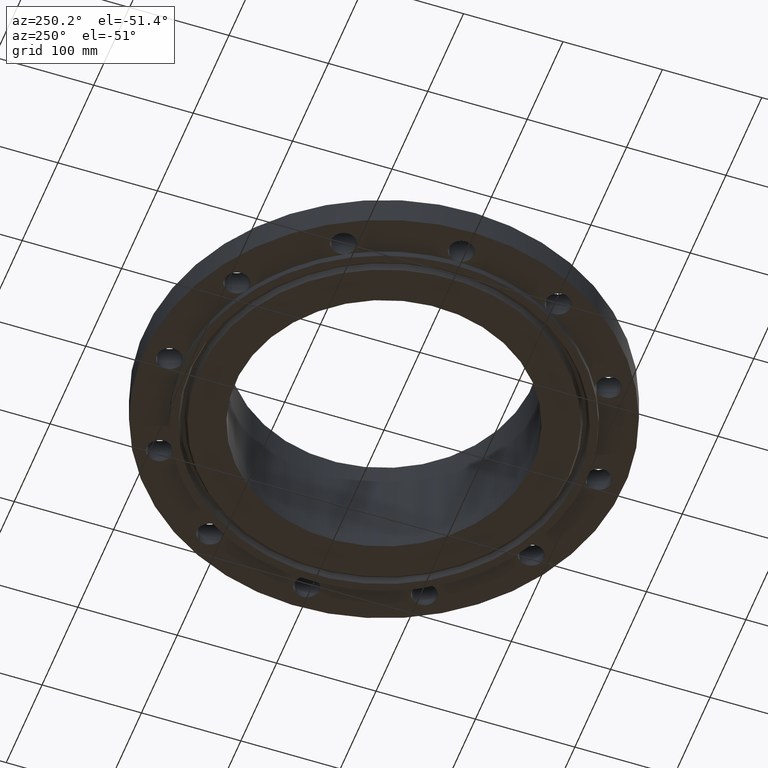
[diagram: clean part render]
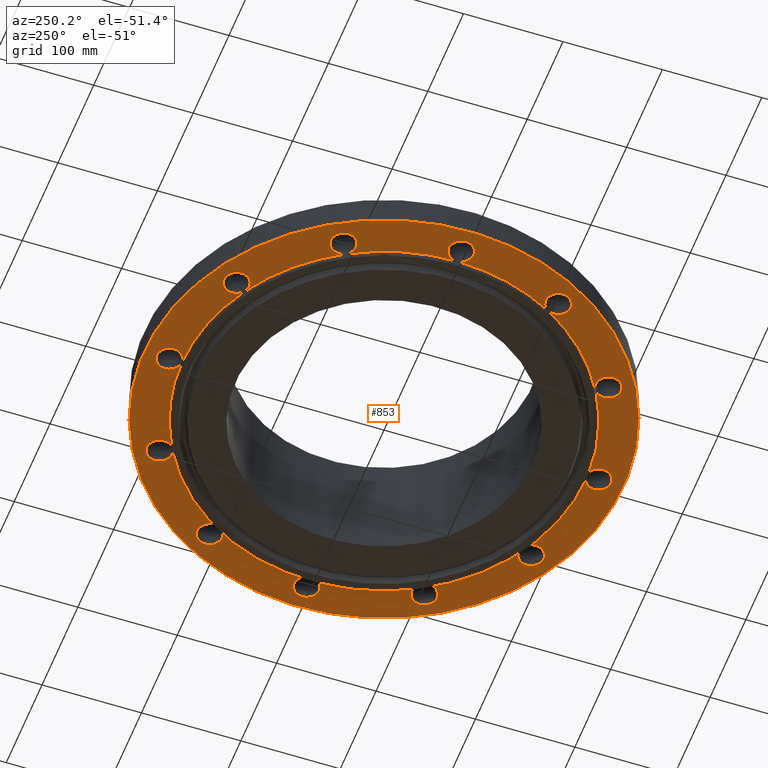
[diagram: same view with one face highlighted and labeled with its STEP entity id]
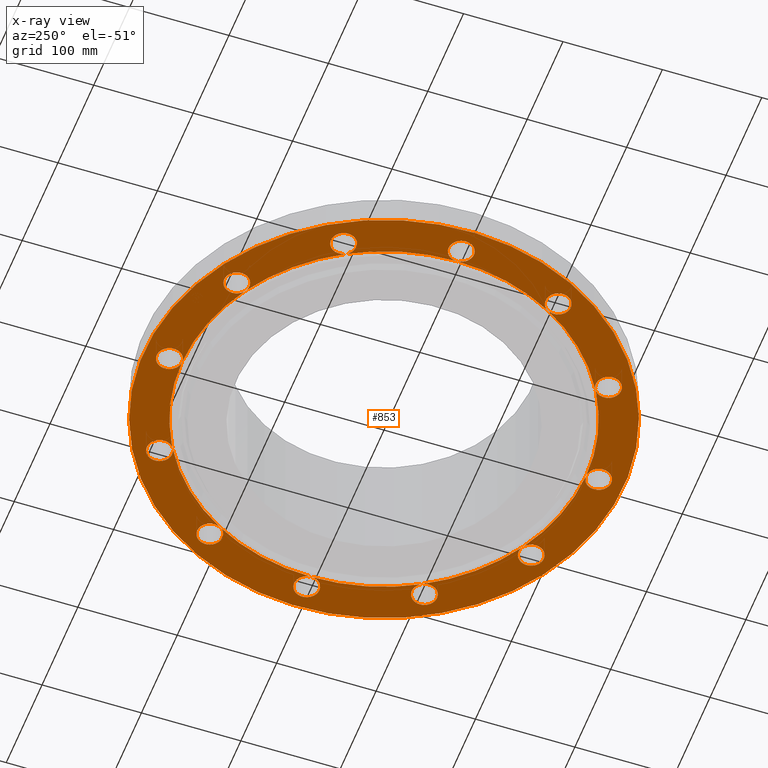
[diagram: x-ray of the same camera — body ghosted, the highlighted face saturated]
A machine part, auxiliary view. The second image highlights one B-rep face of the part: STEP entity #853.
The next image is the same camera in x-ray: the body ghosted, the highlighted face saturated — about 0% of this face is hidden behind the body in this view.
In plain terms, the highlighted planar face has unit normal (0, 0, -1).
Its self-contained STEP definition (entity closure, byte-faithful):
#51=AXIS2_PLACEMENT_3D('Circle Axis2P3D',#49,#50,$) ;
#77=AXIS2_PLACEMENT_3D('Circle Axis2P3D',#75,#76,$) ;
#84=AXIS2_PLACEMENT_3D('Circle Axis2P3D',#82,#83,$) ;
#107=AXIS2_PLACEMENT_3D('Circle Axis2P3D',#105,#106,$) ;
#142=AXIS2_PLACEMENT_3D('Circle Axis2P3D',#140,#141,$) ;
#455=AXIS2_PLACEMENT_3D('Circle Axis2P3D',#453,#454,$) ;
#462=AXIS2_PLACEMENT_3D('Circle Axis2P3D',#460,#461,$) ;
#469=AXIS2_PLACEMENT_3D('Circle Axis2P3D',#467,#468,$) ;
#476=AXIS2_PLACEMENT_3D('Circle Axis2P3D',#474,#475,$) ;
#483=AXIS2_PLACEMENT_3D('Circle Axis2P3D',#481,#482,$) ;
#490=AXIS2_PLACEMENT_3D('Circle Axis2P3D',#488,#489,$) ;
#495=AXIS2_PLACEMENT_3D('Circle Axis2P3D',#493,#494,$) ;
#525=AXIS2_PLACEMENT_3D('Circle Axis2P3D',#523,#524,$) ;
#532=AXIS2_PLACEMENT_3D('Circle Axis2P3D',#530,#531,$) ;
#539=AXIS2_PLACEMENT_3D('Circle Axis2P3D',#537,#538,$) ;
#546=AXIS2_PLACEMENT_3D('Circle Axis2P3D',#544,#545,$) ;
#553=AXIS2_PLACEMENT_3D('Circle Axis2P3D',#551,#552,$) ;
#560=AXIS2_PLACEMENT_3D('Circle Axis2P3D',#558,#559,$) ;
#567=AXIS2_PLACEMENT_3D('Circle Axis2P3D',#565,#566,$) ;
#586=AXIS2_PLACEMENT_3D('Plane Axis2P3D',#583,#584,#585) ;
#594=AXIS2_PLACEMENT_3D('Circle Axis2P3D',#592,#593,$) ;
#601=AXIS2_PLACEMENT_3D('Circle Axis2P3D',#599,#600,$) ;
#608=AXIS2_PLACEMENT_3D('Circle Axis2P3D',#606,#607,$) ;
#613=AXIS2_PLACEMENT_3D('Circle Axis2P3D',#611,#612,$) ;
#620=AXIS2_PLACEMENT_3D('Circle Axis2P3D',#618,#619,$) ;
#627=AXIS2_PLACEMENT_3D('Circle Axis2P3D',#625,#626,$) ;
#632=AXIS2_PLACEMENT_3D('Circle Axis2P3D',#630,#631,$) ;
#639=AXIS2_PLACEMENT_3D('Circle Axis2P3D',#637,#638,$) ;
#646=AXIS2_PLACEMENT_3D('Circle Axis2P3D',#644,#645,$) ;
#651=AXIS2_PLACEMENT_3D('Circle Axis2P3D',#649,#650,$) ;
#658=AXIS2_PLACEMENT_3D('Circle Axis2P3D',#656,#657,$) ;
#665=AXIS2_PLACEMENT_3D('Circle Axis2P3D',#663,#664,$) ;
#670=AXIS2_PLACEMENT_3D('Circle Axis2P3D',#668,#669,$) ;
#677=AXIS2_PLACEMENT_3D('Circle Axis2P3D',#675,#676,$) ;
#684=AXIS2_PLACEMENT_3D('Circle Axis2P3D',#682,#683,$) ;
#689=AXIS2_PLACEMENT_3D('Circle Axis2P3D',#687,#688,$) ;
#696=AXIS2_PLACEMENT_3D('Circle Axis2P3D',#694,#695,$) ;
#703=AXIS2_PLACEMENT_3D('Circle Axis2P3D',#701,#702,$) ;
#708=AXIS2_PLACEMENT_3D('Circle Axis2P3D',#706,#707,$) ;
#715=AXIS2_PLACEMENT_3D('Circle Axis2P3D',#713,#714,$) ;
#722=AXIS2_PLACEMENT_3D('Circle Axis2P3D',#720,#721,$) ;
#727=AXIS2_PLACEMENT_3D('Circle Axis2P3D',#725,#726,$) ;
#734=AXIS2_PLACEMENT_3D('Circle Axis2P3D',#732,#733,$) ;
#741=AXIS2_PLACEMENT_3D('Circle Axis2P3D',#739,#740,$) ;
#746=AXIS2_PLACEMENT_3D('Circle Axis2P3D',#744,#745,$) ;
#753=AXIS2_PLACEMENT_3D('Circle Axis2P3D',#751,#752,$) ;
#760=AXIS2_PLACEMENT_3D('Circle Axis2P3D',#758,#759,$) ;
#765=AXIS2_PLACEMENT_3D('Circle Axis2P3D',#763,#764,$) ;
#772=AXIS2_PLACEMENT_3D('Circle Axis2P3D',#770,#771,$) ;
#779=AXIS2_PLACEMENT_3D('Circle Axis2P3D',#777,#778,$) ;
#784=AXIS2_PLACEMENT_3D('Circle Axis2P3D',#782,#783,$) ;
#791=AXIS2_PLACEMENT_3D('Circle Axis2P3D',#789,#790,$) ;
#798=AXIS2_PLACEMENT_3D('Circle Axis2P3D',#796,#797,$) ;
#44=CARTESIAN_POINT('Vertex',(-0.438791280947,8.73971276934,0.)) ;
#49=CARTESIAN_POINT('Axis2P3D Location',(0.,8.50000000003,0.)) ;
#53=CARTESIAN_POINT('Vertex',(0.438791280947,8.26028723073,0.)) ;
#75=CARTESIAN_POINT('Axis2P3D Location',(0.,8.50000000003,0.)) ;
#79=CARTESIAN_POINT('Vertex',(-3.42901103763E-015,8.00000000003,1.1189649382E-015)) ;
#82=CARTESIAN_POINT('Axis2P3D Location',(0.,8.50000000003,0.)) ;
#105=CARTESIAN_POINT('Axis2P3D Location',(0.,0.,1.39870617276E-015)) ;
#109=CARTESIAN_POINT('Vertex',(-4.55454261676,-8.33703433799,1.39870617276E-015)) ;
#111=CARTESIAN_POINT('Vertex',(4.55454261676,8.33703433799,1.39870617276E-015)) ;
#140=CARTESIAN_POINT('Axis2P3D Location',(0.,0.,1.39870617276E-015)) ;
#450=CARTESIAN_POINT('Vertex',(-3.83540430885,-7.02066049515,8.39223703654E-016)) ;
#453=CARTESIAN_POINT('Axis2P3D Location',(0.,0.,1.1189649382E-015)) ;
#457=CARTESIAN_POINT('Vertex',(-4.00000000002,-6.9282032303,0.)) ;
#460=CARTESIAN_POINT('Axis2P3D Location',(0.,0.,1.1189649382E-015)) ;
#464=CARTESIAN_POINT('Vertex',(-6.9282032303,-4.00000000002,0.)) ;
#467=CARTESIAN_POINT('Axis2P3D Location',(0.,0.,1.1189649382E-015)) ;
#471=CARTESIAN_POINT('Vertex',(-8.00000000003,1.1189649382E-015,0.)) ;
#474=CARTESIAN_POINT('Axis2P3D Location',(0.,0.,1.1189649382E-015)) ;
#478=CARTESIAN_POINT('Vertex',(-6.9282032303,4.00000000002,0.)) ;
#481=CARTESIAN_POINT('Axis2P3D Location',(0.,0.,1.1189649382E-015)) ;
#485=CARTESIAN_POINT('Vertex',(-4.00000000002,6.9282032303,0.)) ;
#488=CARTESIAN_POINT('Axis2P3D Location',(0.,0.,1.1189649382E-015)) ;
#493=CARTESIAN_POINT('Axis2P3D Location',(0.,0.,1.1189649382E-015)) ;
#497=CARTESIAN_POINT('Vertex',(3.83540430885,7.02066049515,8.39223703654E-016)) ;
#523=CARTESIAN_POINT('Axis2P3D Location',(0.,0.,1.1189649382E-015)) ;
#527=CARTESIAN_POINT('Vertex',(4.00000000002,6.9282032303,0.)) ;
#530=CARTESIAN_POINT('Axis2P3D Location',(0.,0.,1.1189649382E-015)) ;
#534=CARTESIAN_POINT('Vertex',(6.9282032303,4.00000000002,0.)) ;
#537=CARTESIAN_POINT('Axis2P3D Location',(0.,0.,1.1189649382E-015)) ;
#541=CARTESIAN_POINT('Vertex',(8.00000000003,0.,0.)) ;
#544=CARTESIAN_POINT('Axis2P3D Location',(0.,0.,1.1189649382E-015)) ;
#548=CARTESIAN_POINT('Vertex',(6.9282032303,-4.00000000002,0.)) ;
#551=CARTESIAN_POINT('Axis2P3D Location',(0.,0.,1.1189649382E-015)) ;
#555=CARTESIAN_POINT('Vertex',(4.00000000002,-6.9282032303,0.)) ;
#558=CARTESIAN_POINT('Axis2P3D Location',(0.,0.,1.1189649382E-015)) ;
#562=CARTESIAN_POINT('Vertex',(1.4467282801E-015,-8.00000000003,0.)) ;
#565=CARTESIAN_POINT('Axis2P3D Location',(0.,0.,1.1189649382E-015)) ;
#583=CARTESIAN_POINT('Axis2P3D Location',(0.,8.00000000003,0.)) ;
#592=CARTESIAN_POINT('Axis2P3D Location',(7.3612159322,4.25000000002,0.)) ;
#596=CARTESIAN_POINT('Vertex',(7.37301422484,3.75013921911,0.)) ;
#599=CARTESIAN_POINT('Axis2P3D Location',(7.3612159322,4.25000000002,0.)) ;
#603=CARTESIAN_POINT('Vertex',(7.34941763955,4.74986078093,0.)) ;
#606=CARTESIAN_POINT('Axis2P3D Location',(7.3612159322,4.25000000002,0.)) ;
#611=CARTESIAN_POINT('Axis2P3D Location',(4.25000000002,7.3612159322,0.)) ;
#615=CARTESIAN_POINT('Vertex',(4.51014801162,6.9342229439,0.)) ;
#618=CARTESIAN_POINT('Axis2P3D Location',(4.25000000002,7.3612159322,0.)) ;
#622=CARTESIAN_POINT('Vertex',(3.98985198841,7.7882089205,0.)) ;
#625=CARTESIAN_POINT('Axis2P3D Location',(4.25000000002,7.3612159322,0.)) ;
#630=CARTESIAN_POINT('Axis2P3D Location',(-4.25000000002,7.3612159322,0.)) ;
#634=CARTESIAN_POINT('Vertex',(-3.75013921911,7.37301422484,0.)) ;
#637=CARTESIAN_POINT('Axis2P3D Location',(-4.25000000002,7.3612159322,0.)) ;
#641=CARTESIAN_POINT('Vertex',(-4.74986078093,7.34941763955,0.)) ;
#644=CARTESIAN_POINT('Axis2P3D Location',(-4.25000000002,7.3612159322,0.)) ;
#649=CARTESIAN_POINT('Axis2P3D Location',(-7.3612159322,4.25000000002,0.)) ;
#653=CARTESIAN_POINT('Vertex',(-6.9342229439,4.51014801162,0.)) ;
#656=CARTESIAN_POINT('Axis2P3D Location',(-7.3612159322,4.25000000002,0.)) ;
#660=CARTESIAN_POINT('Vertex',(-7.7882089205,3.98985198841,0.)) ;
#663=CARTESIAN_POINT('Axis2P3D Location',(-7.3612159322,4.25000000002,0.)) ;
#668=CARTESIAN_POINT('Axis2P3D Location',(-8.50000000003,0.,0.)) ;
#672=CARTESIAN_POINT('Vertex',(-8.26028723073,0.438791280947,0.)) ;
#675=CARTESIAN_POINT('Axis2P3D Location',(-8.50000000003,-1.1189649382E-015,0.)) ;
#679=CARTESIAN_POINT('Vertex',(-8.73971276934,-0.438791280947,0.)) ;
#682=CARTESIAN_POINT('Axis2P3D Location',(-8.50000000003,0.,0.)) ;
#687=CARTESIAN_POINT('Axis2P3D Location',(-7.3612159322,-4.25000000002,0.)) ;
#691=CARTESIAN_POINT('Vertex',(-7.37301422484,-3.75013921911,0.)) ;
#694=CARTESIAN_POINT('Axis2P3D Location',(-7.3612159322,-4.25000000002,0.)) ;
#698=CARTESIAN_POINT('Vertex',(-7.34941763955,-4.74986078093,0.)) ;
#701=CARTESIAN_POINT('Axis2P3D Location',(-7.3612159322,-4.25000000002,0.)) ;
#706=CARTESIAN_POINT('Axis2P3D Location',(-4.25000000002,-7.3612159322,0.)) ;
#710=CARTESIAN_POINT('Vertex',(-4.51014801162,-6.9342229439,0.)) ;
#713=CARTESIAN_POINT('Axis2P3D Location',(-4.25000000002,-7.3612159322,0.)) ;
#717=CARTESIAN_POINT('Vertex',(-3.98985198841,-7.7882089205,0.)) ;
#720=CARTESIAN_POINT('Axis2P3D Location',(-4.25000000002,-7.3612159322,0.)) ;
#725=CARTESIAN_POINT('Axis2P3D Location',(1.53857679003E-015,-8.50000000003,0.)) ;
#729=CARTESIAN_POINT('Vertex',(-0.438791280947,-8.26028723073,0.)) ;
#732=CARTESIAN_POINT('Axis2P3D Location',(6.81869259219E-016,-8.50000000003,0.)) ;
#736=CARTESIAN_POINT('Vertex',(0.438791280947,-8.73971276934,0.)) ;
#739=CARTESIAN_POINT('Axis2P3D Location',(1.53857679003E-015,-8.50000000003,0.)) ;
#744=CARTESIAN_POINT('Axis2P3D Location',(4.25000000002,-7.3612159322,0.)) ;
#748=CARTESIAN_POINT('Vertex',(3.75013921911,-7.37301422484,0.)) ;
#751=CARTESIAN_POINT('Axis2P3D Location',(4.25000000002,-7.3612159322,0.)) ;
#755=CARTESIAN_POINT('Vertex',(4.74986078093,-7.34941763955,0.)) ;
#758=CARTESIAN_POINT('Axis2P3D Location',(4.25000000002,-7.3612159322,0.)) ;
#763=CARTESIAN_POINT('Axis2P3D Location',(7.3612159322,-4.25000000002,0.)) ;
#767=CARTESIAN_POINT('Vertex',(6.9342229439,-4.51014801162,-1.1189649382E-015)) ;
#770=CARTESIAN_POINT('Axis2P3D Location',(7.3612159322,-4.25000000002,0.)) ;
#774=CARTESIAN_POINT('Vertex',(7.7882089205,-3.98985198841,0.)) ;
#777=CARTESIAN_POINT('Axis2P3D Location',(7.3612159322,-4.25000000002,0.)) ;
#782=CARTESIAN_POINT('Axis2P3D Location',(8.50000000003,0.,0.)) ;
#786=CARTESIAN_POINT('Vertex',(8.26028723073,-0.438791280947,0.)) ;
#789=CARTESIAN_POINT('Axis2P3D Location',(8.50000000003,0.,0.)) ;
#793=CARTESIAN_POINT('Vertex',(8.73971276934,0.438791280947,0.)) ;
#796=CARTESIAN_POINT('Axis2P3D Location',(8.50000000003,0.,0.)) ;
#50=DIRECTION('Axis2P3D Direction',(0.,-0.,-0.0393700787402)) ;
#76=DIRECTION('Axis2P3D Direction',(0.,-0.,-0.0393700787402)) ;
#83=DIRECTION('Axis2P3D Direction',(0.,-0.,-0.0393700787402)) ;
#106=DIRECTION('Axis2P3D Direction',(0.,0.,-0.0393700787402)) ;
#141=DIRECTION('Axis2P3D Direction',(0.,0.,-0.0393700787402)) ;
#454=DIRECTION('Axis2P3D Direction',(0.,0.,-0.0393700787402)) ;
#461=DIRECTION('Axis2P3D Direction',(0.,0.,-0.0393700787402)) ;
#468=DIRECTION('Axis2P3D Direction',(0.,0.,-0.0393700787402)) ;
#475=DIRECTION('Axis2P3D Direction',(0.,0.,-0.0393700787402)) ;
#482=DIRECTION('Axis2P3D Direction',(0.,0.,-0.0393700787402)) ;
#489=DIRECTION('Axis2P3D Direction',(0.,0.,-0.0393700787402)) ;
#494=DIRECTION('Axis2P3D Direction',(0.,0.,-0.0393700787402)) ;
#524=DIRECTION('Axis2P3D Direction',(0.,0.,-0.0393700787402)) ;
#531=DIRECTION('Axis2P3D Direction',(0.,0.,-0.0393700787402)) ;
#538=DIRECTION('Axis2P3D Direction',(0.,0.,-0.0393700787402)) ;
#545=DIRECTION('Axis2P3D Direction',(0.,0.,-0.0393700787402)) ;
#552=DIRECTION('Axis2P3D Direction',(0.,0.,-0.0393700787402)) ;
#559=DIRECTION('Axis2P3D Direction',(0.,0.,-0.0393700787402)) ;
#566=DIRECTION('Axis2P3D Direction',(0.,0.,-0.0393700787402)) ;
#584=DIRECTION('Axis2P3D Direction',(0.,0.,-0.0393700787402)) ;
#585=DIRECTION('Axis2P3D XDirection',(0.0393700787402,0.,0.)) ;
#593=DIRECTION('Axis2P3D Direction',(0.,0.,-0.0393700787402)) ;
#600=DIRECTION('Axis2P3D Direction',(0.,0.,-0.0393700787402)) ;
#607=DIRECTION('Axis2P3D Direction',(0.,0.,-0.0393700787402)) ;
#612=DIRECTION('Axis2P3D Direction',(0.,0.,-0.0393700787402)) ;
#619=DIRECTION('Axis2P3D Direction',(0.,0.,-0.0393700787402)) ;
#626=DIRECTION('Axis2P3D Direction',(0.,0.,-0.0393700787402)) ;
#631=DIRECTION('Axis2P3D Direction',(0.,0.,-0.0393700787402)) ;
#638=DIRECTION('Axis2P3D Direction',(0.,0.,-0.0393700787402)) ;
#645=DIRECTION('Axis2P3D Direction',(0.,0.,-0.0393700787402)) ;
#650=DIRECTION('Axis2P3D Direction',(0.,0.,-0.0393700787402)) ;
#657=DIRECTION('Axis2P3D Direction',(0.,0.,-0.0393700787402)) ;
#664=DIRECTION('Axis2P3D Direction',(0.,0.,-0.0393700787402)) ;
#669=DIRECTION('Axis2P3D Direction',(0.,0.,-0.0393700787402)) ;
#676=DIRECTION('Axis2P3D Direction',(0.,0.,-0.0393700787402)) ;
#683=DIRECTION('Axis2P3D Direction',(0.,0.,-0.0393700787402)) ;
#688=DIRECTION('Axis2P3D Direction',(0.,0.,-0.0393700787402)) ;
#695=DIRECTION('Axis2P3D Direction',(0.,0.,-0.0393700787402)) ;
#702=DIRECTION('Axis2P3D Direction',(0.,0.,-0.0393700787402)) ;
#707=DIRECTION('Axis2P3D Direction',(0.,0.,-0.0393700787402)) ;
#714=DIRECTION('Axis2P3D Direction',(0.,0.,-0.0393700787402)) ;
#721=DIRECTION('Axis2P3D Direction',(0.,0.,-0.0393700787402)) ;
#726=DIRECTION('Axis2P3D Direction',(0.,0.,-0.0393700787402)) ;
#733=DIRECTION('Axis2P3D Direction',(0.,0.,-0.0393700787402)) ;
#740=DIRECTION('Axis2P3D Direction',(0.,0.,-0.0393700787402)) ;
#745=DIRECTION('Axis2P3D Direction',(0.,0.,-0.0393700787402)) ;
#752=DIRECTION('Axis2P3D Direction',(0.,0.,-0.0393700787402)) ;
#759=DIRECTION('Axis2P3D Direction',(0.,0.,-0.0393700787402)) ;
#764=DIRECTION('Axis2P3D Direction',(0.,0.,-0.0393700787402)) ;
#771=DIRECTION('Axis2P3D Direction',(0.,0.,-0.0393700787402)) ;
#778=DIRECTION('Axis2P3D Direction',(0.,0.,-0.0393700787402)) ;
#783=DIRECTION('Axis2P3D Direction',(0.,0.,-0.0393700787402)) ;
#790=DIRECTION('Axis2P3D Direction',(0.,0.,-0.0393700787402)) ;
#797=DIRECTION('Axis2P3D Direction',(0.,0.,-0.0393700787402)) ;
#589=ORIENTED_EDGE('',*,*,#113,.T.) ;
#590=ORIENTED_EDGE('',*,*,#144,.T.) ;
#802=ORIENTED_EDGE('',*,*,#598,.F.) ;
#803=ORIENTED_EDGE('',*,*,#605,.F.) ;
#804=ORIENTED_EDGE('',*,*,#610,.F.) ;
#805=ORIENTED_EDGE('',*,*,#536,.F.) ;
#806=ORIENTED_EDGE('',*,*,#617,.F.) ;
#807=ORIENTED_EDGE('',*,*,#624,.F.) ;
#808=ORIENTED_EDGE('',*,*,#629,.F.) ;
#809=ORIENTED_EDGE('',*,*,#529,.F.) ;
#810=ORIENTED_EDGE('',*,*,#499,.F.) ;
#811=ORIENTED_EDGE('',*,*,#81,.F.) ;
#812=ORIENTED_EDGE('',*,*,#55,.F.) ;
#813=ORIENTED_EDGE('',*,*,#86,.F.) ;
#814=ORIENTED_EDGE('',*,*,#492,.F.) ;
#815=ORIENTED_EDGE('',*,*,#636,.F.) ;
#816=ORIENTED_EDGE('',*,*,#643,.F.) ;
#817=ORIENTED_EDGE('',*,*,#648,.F.) ;
#818=ORIENTED_EDGE('',*,*,#487,.F.) ;
#819=ORIENTED_EDGE('',*,*,#655,.F.) ;
#820=ORIENTED_EDGE('',*,*,#662,.F.) ;
#821=ORIENTED_EDGE('',*,*,#667,.F.) ;
#822=ORIENTED_EDGE('',*,*,#480,.F.) ;
#823=ORIENTED_EDGE('',*,*,#674,.F.) ;
#824=ORIENTED_EDGE('',*,*,#681,.F.) ;
#825=ORIENTED_EDGE('',*,*,#686,.F.) ;
#826=ORIENTED_EDGE('',*,*,#473,.F.) ;
#827=ORIENTED_EDGE('',*,*,#693,.F.) ;
#828=ORIENTED_EDGE('',*,*,#700,.F.) ;
#829=ORIENTED_EDGE('',*,*,#705,.F.) ;
#830=ORIENTED_EDGE('',*,*,#466,.F.) ;
#831=ORIENTED_EDGE('',*,*,#712,.F.) ;
#832=ORIENTED_EDGE('',*,*,#719,.F.) ;
#833=ORIENTED_EDGE('',*,*,#724,.F.) ;
#834=ORIENTED_EDGE('',*,*,#459,.F.) ;
#835=ORIENTED_EDGE('',*,*,#569,.F.) ;
#836=ORIENTED_EDGE('',*,*,#731,.F.) ;
#837=ORIENTED_EDGE('',*,*,#738,.F.) ;
#838=ORIENTED_EDGE('',*,*,#743,.F.) ;
#839=ORIENTED_EDGE('',*,*,#564,.F.) ;
#840=ORIENTED_EDGE('',*,*,#750,.F.) ;
#841=ORIENTED_EDGE('',*,*,#757,.F.) ;
#842=ORIENTED_EDGE('',*,*,#762,.F.) ;
#843=ORIENTED_EDGE('',*,*,#557,.F.) ;
#844=ORIENTED_EDGE('',*,*,#769,.F.) ;
#845=ORIENTED_EDGE('',*,*,#776,.F.) ;
#846=ORIENTED_EDGE('',*,*,#781,.F.) ;
#847=ORIENTED_EDGE('',*,*,#550,.F.) ;
#848=ORIENTED_EDGE('',*,*,#788,.F.) ;
#849=ORIENTED_EDGE('',*,*,#795,.F.) ;
#850=ORIENTED_EDGE('',*,*,#800,.F.) ;
#851=ORIENTED_EDGE('',*,*,#543,.F.) ;
#852=FACE_BOUND('',#801,.T.) ;
#853=ADVANCED_FACE('PartBody',(#591,#852),#587,.T.) ;
#52=CIRCLE('generated circle',#51,0.500000000002) ;
#78=CIRCLE('generated circle',#77,0.500000000002) ;
#85=CIRCLE('generated circle',#84,0.500000000002) ;
#108=CIRCLE('generated circle',#107,9.50000000004) ;
#143=CIRCLE('generated circle',#142,9.50000000004) ;
#456=CIRCLE('generated circle',#455,8.00000000003) ;
#463=CIRCLE('generated circle',#462,8.00000000003) ;
#470=CIRCLE('generated circle',#469,8.00000000003) ;
#477=CIRCLE('generated circle',#476,8.00000000003) ;
#484=CIRCLE('generated circle',#483,8.00000000003) ;
#491=CIRCLE('generated circle',#490,8.00000000003) ;
#496=CIRCLE('generated circle',#495,8.00000000003) ;
#526=CIRCLE('generated circle',#525,8.00000000003) ;
#533=CIRCLE('generated circle',#532,8.00000000003) ;
#540=CIRCLE('generated circle',#539,8.00000000003) ;
#547=CIRCLE('generated circle',#546,8.00000000003) ;
#554=CIRCLE('generated circle',#553,8.00000000003) ;
#561=CIRCLE('generated circle',#560,8.00000000003) ;
#568=CIRCLE('generated circle',#567,8.00000000003) ;
#595=CIRCLE('generated circle',#594,0.500000000002) ;
#602=CIRCLE('generated circle',#601,0.500000000002) ;
#609=CIRCLE('generated circle',#608,0.500000000002) ;
#614=CIRCLE('generated circle',#613,0.500000000002) ;
#621=CIRCLE('generated circle',#620,0.500000000002) ;
#628=CIRCLE('generated circle',#627,0.500000000002) ;
#633=CIRCLE('generated circle',#632,0.500000000002) ;
#640=CIRCLE('generated circle',#639,0.500000000002) ;
#647=CIRCLE('generated circle',#646,0.500000000002) ;
#652=CIRCLE('generated circle',#651,0.500000000002) ;
#659=CIRCLE('generated circle',#658,0.500000000002) ;
#666=CIRCLE('generated circle',#665,0.500000000002) ;
#671=CIRCLE('generated circle',#670,0.500000000002) ;
#678=CIRCLE('generated circle',#677,0.500000000002) ;
#685=CIRCLE('generated circle',#684,0.500000000002) ;
#690=CIRCLE('generated circle',#689,0.500000000002) ;
#697=CIRCLE('generated circle',#696,0.500000000002) ;
#704=CIRCLE('generated circle',#703,0.500000000002) ;
#709=CIRCLE('generated circle',#708,0.500000000002) ;
#716=CIRCLE('generated circle',#715,0.500000000002) ;
#723=CIRCLE('generated circle',#722,0.500000000002) ;
#728=CIRCLE('generated circle',#727,0.500000000002) ;
#735=CIRCLE('generated circle',#734,0.500000000002) ;
#742=CIRCLE('generated circle',#741,0.500000000002) ;
#747=CIRCLE('generated circle',#746,0.500000000002) ;
#754=CIRCLE('generated circle',#753,0.500000000002) ;
#761=CIRCLE('generated circle',#760,0.500000000002) ;
#766=CIRCLE('generated circle',#765,0.500000000002) ;
#773=CIRCLE('generated circle',#772,0.500000000002) ;
#780=CIRCLE('generated circle',#779,0.500000000002) ;
#785=CIRCLE('generated circle',#784,0.500000000002) ;
#792=CIRCLE('generated circle',#791,0.500000000002) ;
#799=CIRCLE('generated circle',#798,0.500000000002) ;
#55=EDGE_CURVE('',#45,#54,#52,.T.) ;
#81=EDGE_CURVE('',#54,#80,#78,.T.) ;
#86=EDGE_CURVE('',#80,#45,#85,.T.) ;
#113=EDGE_CURVE('',#110,#112,#108,.T.) ;
#144=EDGE_CURVE('',#112,#110,#143,.T.) ;
#459=EDGE_CURVE('',#451,#458,#456,.T.) ;
#466=EDGE_CURVE('',#458,#465,#463,.T.) ;
#473=EDGE_CURVE('',#465,#472,#470,.T.) ;
#480=EDGE_CURVE('',#472,#479,#477,.T.) ;
#487=EDGE_CURVE('',#479,#486,#484,.T.) ;
#492=EDGE_CURVE('',#486,#80,#491,.T.) ;
#499=EDGE_CURVE('',#80,#498,#496,.T.) ;
#529=EDGE_CURVE('',#498,#528,#526,.T.) ;
#536=EDGE_CURVE('',#528,#535,#533,.T.) ;
#543=EDGE_CURVE('',#535,#542,#540,.T.) ;
#550=EDGE_CURVE('',#542,#549,#547,.T.) ;
#557=EDGE_CURVE('',#549,#556,#554,.T.) ;
#564=EDGE_CURVE('',#556,#563,#561,.T.) ;
#569=EDGE_CURVE('',#563,#451,#568,.T.) ;
#598=EDGE_CURVE('',#597,#535,#595,.T.) ;
#605=EDGE_CURVE('',#604,#597,#602,.T.) ;
#610=EDGE_CURVE('',#535,#604,#609,.T.) ;
#617=EDGE_CURVE('',#616,#528,#614,.T.) ;
#624=EDGE_CURVE('',#623,#616,#621,.T.) ;
#629=EDGE_CURVE('',#528,#623,#628,.T.) ;
#636=EDGE_CURVE('',#635,#486,#633,.T.) ;
#643=EDGE_CURVE('',#642,#635,#640,.T.) ;
#648=EDGE_CURVE('',#486,#642,#647,.T.) ;
#655=EDGE_CURVE('',#654,#479,#652,.T.) ;
#662=EDGE_CURVE('',#661,#654,#659,.T.) ;
#667=EDGE_CURVE('',#479,#661,#666,.T.) ;
#674=EDGE_CURVE('',#673,#472,#671,.T.) ;
#681=EDGE_CURVE('',#680,#673,#678,.T.) ;
#686=EDGE_CURVE('',#472,#680,#685,.T.) ;
#693=EDGE_CURVE('',#692,#465,#690,.T.) ;
#700=EDGE_CURVE('',#699,#692,#697,.T.) ;
#705=EDGE_CURVE('',#465,#699,#704,.T.) ;
#712=EDGE_CURVE('',#711,#458,#709,.T.) ;
#719=EDGE_CURVE('',#718,#711,#716,.T.) ;
#724=EDGE_CURVE('',#458,#718,#723,.T.) ;
#731=EDGE_CURVE('',#730,#563,#728,.T.) ;
#738=EDGE_CURVE('',#737,#730,#735,.T.) ;
#743=EDGE_CURVE('',#563,#737,#742,.T.) ;
#750=EDGE_CURVE('',#749,#556,#747,.T.) ;
#757=EDGE_CURVE('',#756,#749,#754,.T.) ;
#762=EDGE_CURVE('',#556,#756,#761,.T.) ;
#769=EDGE_CURVE('',#768,#549,#766,.T.) ;
#776=EDGE_CURVE('',#775,#768,#773,.T.) ;
#781=EDGE_CURVE('',#549,#775,#780,.T.) ;
#788=EDGE_CURVE('',#787,#542,#785,.T.) ;
#795=EDGE_CURVE('',#794,#787,#792,.T.) ;
#800=EDGE_CURVE('',#542,#794,#799,.T.) ;
#588=EDGE_LOOP('',(#589,#590)) ;
#801=EDGE_LOOP('',(#802,#803,#804,#805,#806,#807,#808,#809,#810,#811,#812,#813,#814,#815,#816,#817,#818,#819,#820,#821,#822,#823,#824,#825,#826,#827,#828,#829,#830,#831,#832,#833,#834,#835,#836,#837,#838,#839,#840,#841,#842,#843,#844,#845,#846,#847,#848,#849,#850,#851)) ;
#591=FACE_OUTER_BOUND('',#588,.T.) ;
#587=PLANE('',#586) ;
#45=VERTEX_POINT('',#44) ;
#54=VERTEX_POINT('',#53) ;
#80=VERTEX_POINT('',#79) ;
#110=VERTEX_POINT('',#109) ;
#112=VERTEX_POINT('',#111) ;
#451=VERTEX_POINT('',#450) ;
#458=VERTEX_POINT('',#457) ;
#465=VERTEX_POINT('',#464) ;
#472=VERTEX_POINT('',#471) ;
#479=VERTEX_POINT('',#478) ;
#486=VERTEX_POINT('',#485) ;
#498=VERTEX_POINT('',#497) ;
#528=VERTEX_POINT('',#527) ;
#535=VERTEX_POINT('',#534) ;
#542=VERTEX_POINT('',#541) ;
#549=VERTEX_POINT('',#548) ;
#556=VERTEX_POINT('',#555) ;
#563=VERTEX_POINT('',#562) ;
#597=VERTEX_POINT('',#596) ;
#604=VERTEX_POINT('',#603) ;
#616=VERTEX_POINT('',#615) ;
#623=VERTEX_POINT('',#622) ;
#635=VERTEX_POINT('',#634) ;
#642=VERTEX_POINT('',#641) ;
#654=VERTEX_POINT('',#653) ;
#661=VERTEX_POINT('',#660) ;
#673=VERTEX_POINT('',#672) ;
#680=VERTEX_POINT('',#679) ;
#692=VERTEX_POINT('',#691) ;
#699=VERTEX_POINT('',#698) ;
#711=VERTEX_POINT('',#710) ;
#718=VERTEX_POINT('',#717) ;
#730=VERTEX_POINT('',#729) ;
#737=VERTEX_POINT('',#736) ;
#749=VERTEX_POINT('',#748) ;
#756=VERTEX_POINT('',#755) ;
#768=VERTEX_POINT('',#767) ;
#775=VERTEX_POINT('',#774) ;
#787=VERTEX_POINT('',#786) ;
#794=VERTEX_POINT('',#793) ;